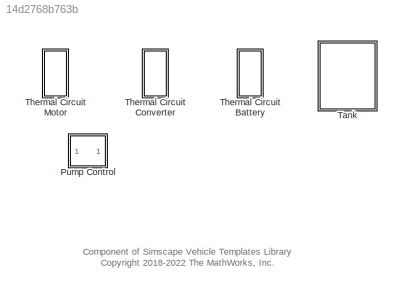
MODEL slx_14d2768b763b
KIND library
CONFIG AbsTol = auto
CONFIG EnableMultiTasking = off
CONFIG FixedStep = auto
CONFIG MaxStep = auto
CONFIG MinStep = auto
CONFIG RelTol = 1e-3
CONFIG SampleTimeConstraint = Unconstrained
CONFIG SolverName = VariableStepAuto
CONFIG StartTime = 0.0
CONFIG StopTime = 10.0
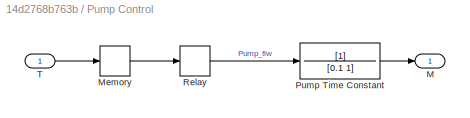
BLOCK [SubSystem] Pump Control
  Ports = [1, 1]
  RequestExecContextInheritance = off
BLOCK [Outport] Pump Control/M
  VectorParamsAs1DForOutWhenUnconnected = off
BLOCK [Memory] Pump Control/Memory
BLOCK [TransferFcn] Pump Control/Pump Time Constant
  Denominator = [0.1 1]
BLOCK [Relay] Pump Control/Relay
  OffSwitchValue = 293
  OnSwitchValue = 313
  ZeroCross = off
BLOCK [Inport] Pump Control/T
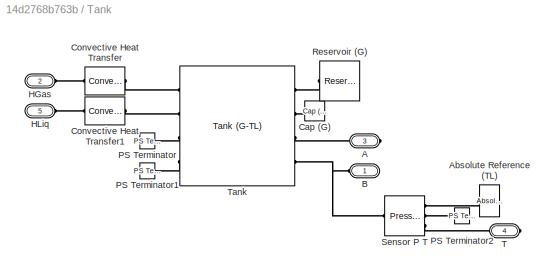
BLOCK [SubSystem] Tank
  Ports = [0, 0, 0, 0, 0, 3, 2]
  RequestExecContextInheritance = off
BLOCK [PMIOPort] Tank/A
  Port = 3
  Side = Right
BLOCK [Reference] Tank/Absolute Reference (TL)  REF=fl_lib/Thermal Liquid/Elements/Absolute Reference
(TL)
  Ports = [0, 0, 0, 0, 0, 1]
  SourceBlock = fl_lib/Thermal Liquid/Elements/Absolute Reference\n(TL)
  SourceProductBaseCode = PW,SS,VE
  SourceType = Absolute Reference\n(TL)
BLOCK [PMIOPort] Tank/B
  Side = Left
BLOCK [Reference] Tank/Cap (G)  REF=fl_lib/Gas/Elements/Cap (G)
  Ports = [0, 0, 0, 0, 0, 1]
  SourceBlock = fl_lib/Gas/Elements/Cap (G)
  SourceProductBaseCode = PW,SS,VE
  SourceType = Cap (G)
BLOCK [Reference] Tank/Convective Heat Transfer  REF=fl_lib/Thermal/Thermal Elements/Convective Heat
Transfer
  Ports = [0, 0, 0, 0, 0, 1, 1]
  SourceBlock = fl_lib/Thermal/Thermal Elements/Convective Heat\nTransfer
  SourceProductBaseCode = PW,SS,VE
  SourceType = Convective Heat\nTransfer
BLOCK [Reference] Tank/Convective Heat Transfer1  REF=fl_lib/Thermal/Thermal Elements/Convective Heat
Transfer
  Ports = [0, 0, 0, 0, 0, 1, 1]
  SourceBlock = fl_lib/Thermal/Thermal Elements/Convective Heat\nTransfer
  SourceProductBaseCode = PW,SS,VE
  SourceType = Convective Heat\nTransfer
BLOCK [PMIOPort] Tank/HGas
  Port = 2
  Side = Left
BLOCK [PMIOPort] Tank/HLiq
  Port = 5
  Side = Left
BLOCK [Reference] Tank/PS Terminator  REF=fl_lib/Physical Signals/Sinks/PS Terminator
  Ports = [0, 0, 0, 0, 0, 1]
  SourceBlock = fl_lib/Physical Signals/Sinks/PS Terminator
  SourceProductBaseCode = PW,SS,VE
  SourceType = PS Terminator
BLOCK [Reference] Tank/PS Terminator1  REF=fl_lib/Physical Signals/Sinks/PS Terminator
  Ports = [0, 0, 0, 0, 0, 1]
  SourceBlock = fl_lib/Physical Signals/Sinks/PS Terminator
  SourceProductBaseCode = PW,SS,VE
  SourceType = PS Terminator
BLOCK [Reference] Tank/PS Terminator2  REF=fl_lib/Physical Signals/Sinks/PS Terminator
  Ports = [0, 0, 0, 0, 0, 1]
  SourceBlock = fl_lib/Physical Signals/Sinks/PS Terminator
  SourceProductBaseCode = PW,SS,VE
  SourceType = PS Terminator
BLOCK [Reference] Tank/Reservoir (G)  REF=fl_lib/Gas/Elements/Reservoir (G)
  Ports = [0, 0, 0, 0, 0, 1]
  SourceBlock = fl_lib/Gas/Elements/Reservoir (G)
  SourceProductBaseCode = PW,SS,VE
  SourceType = Reservoir (G)
BLOCK [Reference] Tank/Sensor P T  REF=fl_lib/Thermal Liquid/Sensors/Pressure &
Temperature Sensor
(TL)
  Ports = [0, 0, 0, 0, 0, 1, 3]
  SourceBlock = fl_lib/Thermal Liquid/Sensors/Pressure &\nTemperature Sensor\n(TL)
  SourceProductBaseCode = PW,SS,VE
  SourceType = Pressure &\nTemperature Sensor\n(TL)
BLOCK [PMIOPort] Tank/T
  Port = 4
  Side = Right
BLOCK [Reference] Tank/Tank  REF=SimscapeFluids_lib/Fluid Network
Interfaces/Tanks & Accumulators/Tank (G-TL)
  Ports = [0, 0, 0, 0, 0, 4, 4]
  SourceBlock = SimscapeFluids_lib/Fluid Network\nInterfaces/Tanks & Accumulators/Tank (G-TL)
  SourceProductBaseCode = SH
  SourceType = Tank (G-TL)
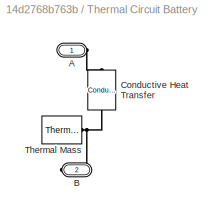
BLOCK [SubSystem] Thermal Circuit Battery
  NameLocation = left
  Ports = [0, 0, 0, 0, 0, 1, 1]
  RequestExecContextInheritance = off
BLOCK [PMIOPort] Thermal Circuit Battery/A
  Side = Left
BLOCK [PMIOPort] Thermal Circuit Battery/B
  Port = 2
  Side = Right
BLOCK [Reference] Thermal Circuit Battery/Conductive Heat Transfer  REF=fl_lib/Thermal/Thermal Elements/Conductive Heat
Transfer
  NameLocation = right
  Ports = [0, 0, 0, 0, 0, 1, 1]
  SourceBlock = fl_lib/Thermal/Thermal Elements/Conductive Heat\nTransfer
  SourceProductBaseCode = PW,SS,VE
  SourceType = Conductive Heat\nTransfer
BLOCK [Reference] Thermal Circuit Battery/Thermal Mass  REF=fl_lib/Thermal/Thermal Elements/Thermal Mass
  Ports = [0, 0, 0, 0, 0, 1]
  SourceBlock = fl_lib/Thermal/Thermal Elements/Thermal Mass
  SourceProductBaseCode = PW,SS,VE
  SourceType = Thermal Mass
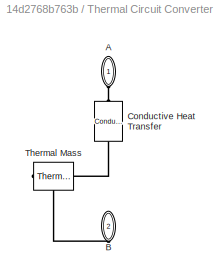
BLOCK [SubSystem] Thermal Circuit Converter
  NameLocation = left
  Ports = [0, 0, 0, 0, 0, 1, 1]
  RequestExecContextInheritance = off
BLOCK [PMIOPort] Thermal Circuit Converter/A
  NameLocation = left
  Side = Left
BLOCK [PMIOPort] Thermal Circuit Converter/B
  NameLocation = right
  Port = 2
  Side = Right
BLOCK [Reference] Thermal Circuit Converter/Conductive Heat Transfer  REF=fl_lib/Thermal/Thermal Elements/Conductive Heat
Transfer
  NameLocation = right
  Ports = [0, 0, 0, 0, 0, 1, 1]
  SourceBlock = fl_lib/Thermal/Thermal Elements/Conductive Heat\nTransfer
  SourceProductBaseCode = PW,SS,VE
  SourceType = Conductive Heat\nTransfer
BLOCK [Reference] Thermal Circuit Converter/Thermal Mass  REF=fl_lib/Thermal/Thermal Elements/Thermal Mass
  NameLocation = top
  Ports = [0, 0, 0, 0, 0, 1]
  SourceBlock = fl_lib/Thermal/Thermal Elements/Thermal Mass
  SourceProductBaseCode = PW,SS,VE
  SourceType = Thermal Mass
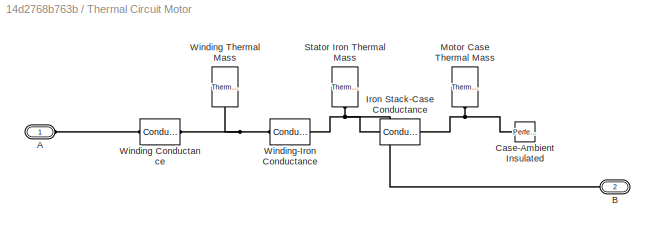
BLOCK [SubSystem] Thermal Circuit Motor
  NameLocation = left
  Ports = [0, 0, 0, 0, 0, 1, 1]
  RequestExecContextInheritance = off
BLOCK [PMIOPort] Thermal Circuit Motor/A
  Side = Left
BLOCK [PMIOPort] Thermal Circuit Motor/B
  Port = 2
  Side = Right
BLOCK [Reference] Thermal Circuit Motor/Case-Ambient Insulated  REF=fl_lib/Thermal/Thermal Elements/Perfect Insulator
  Ports = [0, 0, 0, 0, 0, 1]
  SourceBlock = fl_lib/Thermal/Thermal Elements/Perfect Insulator
  SourceProductBaseCode = PW,SS,VE
  SourceType = Perfect Insulator
BLOCK [Reference] Thermal Circuit Motor/Iron Stack-Case Conductance  REF=fl_lib/Thermal/Thermal Elements/Conductive Heat
Transfer
  Ports = [0, 0, 0, 0, 0, 1, 1]
  SourceBlock = fl_lib/Thermal/Thermal Elements/Conductive Heat\nTransfer
  SourceProductBaseCode = PW,SS,VE
  SourceType = Conductive Heat\nTransfer
BLOCK [Reference] Thermal Circuit Motor/Motor Case Thermal Mass  REF=fl_lib/Thermal/Thermal Elements/Thermal Mass
  NameLocation = right
  Ports = [0, 0, 0, 0, 0, 1]
  SourceBlock = fl_lib/Thermal/Thermal Elements/Thermal Mass
  SourceProductBaseCode = PW,SS,VE
  SourceType = Thermal Mass
BLOCK [Reference] Thermal Circuit Motor/Stator Iron Thermal Mass  REF=fl_lib/Thermal/Thermal Elements/Thermal Mass
  NameLocation = right
  Ports = [0, 0, 0, 0, 0, 1]
  SourceBlock = fl_lib/Thermal/Thermal Elements/Thermal Mass
  SourceProductBaseCode = PW,SS,VE
  SourceType = Thermal Mass
BLOCK [Reference] Thermal Circuit Motor/Winding Conductance  REF=fl_lib/Thermal/Thermal Elements/Conductive Heat
Transfer
  NameLocation = top
  Ports = [0, 0, 0, 0, 0, 1, 1]
  SourceBlock = fl_lib/Thermal/Thermal Elements/Conductive Heat\nTransfer
  SourceProductBaseCode = PW,SS,VE
  SourceType = Conductive Heat\nTransfer
BLOCK [Reference] Thermal Circuit Motor/Winding Thermal Mass  REF=fl_lib/Thermal/Thermal Elements/Thermal Mass
  NameLocation = right
  Ports = [0, 0, 0, 0, 0, 1]
  SourceBlock = fl_lib/Thermal/Thermal Elements/Thermal Mass
  SourceProductBaseCode = PW,SS,VE
  SourceType = Thermal Mass
BLOCK [Reference] Thermal Circuit Motor/Winding-Iron Conductance  REF=fl_lib/Thermal/Thermal Elements/Conductive Heat
Transfer
  Ports = [0, 0, 0, 0, 0, 1, 1]
  SourceBlock = fl_lib/Thermal/Thermal Elements/Conductive Heat\nTransfer
  SourceProductBaseCode = PW,SS,VE
  SourceType = Conductive Heat\nTransfer
ANNOTATION (root): Component of Simscape Vehicle Templates Library <copyright redacted>
LINE Pump Control/Memory:1 -> Pump Control/Relay:1
LINE Pump Control/Pump Time Constant:1 -> Pump Control/M:1
LINE Pump Control/Relay:1 -> Pump Control/Pump Time Constant:1
LINE Pump Control/T:1 -> Pump Control/Memory:1
PLINE Tank/A:RConn1 -- Tank/Tank:LConn3
PLINE Tank/Absolute Reference (TL):LConn1 -- Tank/Sensor P T:RConn1
PNET net1: Tank/B:RConn1 -- Tank/Sensor P T:LConn1 -- Tank/Tank:LConn4
PLINE Tank/Cap (G):LConn1 -- Tank/Tank:LConn2
PLINE Tank/Convective Heat Transfer1:LConn1 -- Tank/Tank:RConn2
PLINE Tank/Convective Heat Transfer1:RConn1 -- Tank/HLiq:RConn1
PLINE Tank/Convective Heat Transfer:LConn1 -- Tank/Tank:RConn1
PLINE Tank/Convective Heat Transfer:RConn1 -- Tank/HGas:RConn1
PLINE Tank/PS Terminator1:LConn1 -- Tank/Tank:RConn4
PLINE Tank/PS Terminator2:LConn1 -- Tank/Sensor P T:RConn2
PLINE Tank/PS Terminator:LConn1 -- Tank/Tank:RConn3
PLINE Tank/Reservoir (G):LConn1 -- Tank/Tank:LConn1
PLINE Tank/Sensor P T:RConn3 -- Tank/T:RConn1
PLINE Thermal Circuit Battery/A:RConn1 -- Thermal Circuit Battery/Conductive Heat Transfer:LConn1
PNET net2: Thermal Circuit Battery/B:RConn1 -- Thermal Circuit Battery/Conductive Heat Transfer:RConn1 -- Thermal Circuit Battery/Thermal Mass:LConn1
PLINE Thermal Circuit Converter/A:RConn1 -- Thermal Circuit Converter/Conductive Heat Transfer:LConn1
PNET net3: Thermal Circuit Converter/B:RConn1 -- Thermal Circuit Converter/Conductive Heat Transfer:RConn1 -- Thermal Circuit Converter/Thermal Mass:LConn1
PLINE Thermal Circuit Motor/A:RConn1 -- Thermal Circuit Motor/Winding Conductance:RConn1
PNET net4: Thermal Circuit Motor/B:RConn1 -- Thermal Circuit Motor/Iron Stack-Case Conductance:LConn1 -- Thermal Circuit Motor/Stator Iron Thermal Mass:LConn1 -- Thermal Circuit Motor/Winding-Iron Conductance:RConn1
PNET net5: Thermal Circuit Motor/Case-Ambient Insulated:LConn1 -- Thermal Circuit Motor/Iron Stack-Case Conductance:RConn1 -- Thermal Circuit Motor/Motor Case Thermal Mass:LConn1
PNET net6: Thermal Circuit Motor/Winding Conductance:LConn1 -- Thermal Circuit Motor/Winding Thermal Mass:LConn1 -- Thermal Circuit Motor/Winding-Iron Conductance:LConn1
note: PNET lines group multi-terminal physical nets as a canonical sorted terminal list (undirected conserving connections); 2-terminal nets keep the pairwise PLINE form
